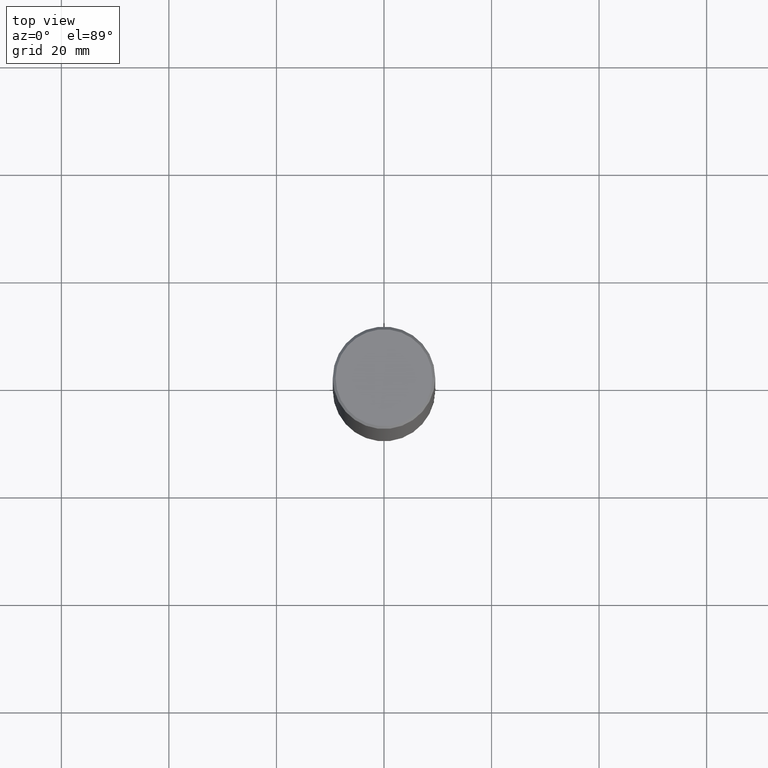
[diagram: clean part render]
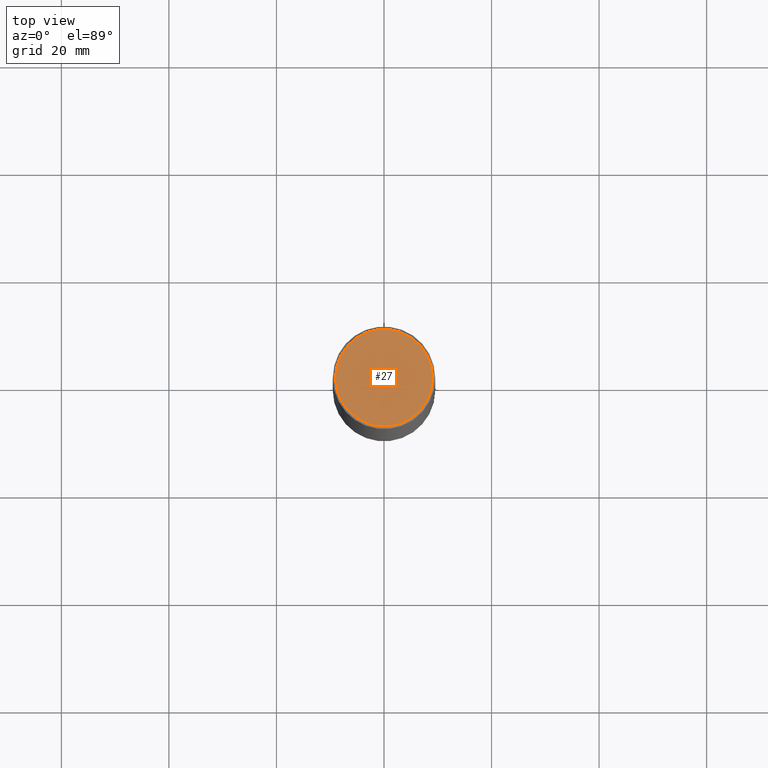
[diagram: same view with one face highlighted and labeled with its STEP entity id]
A machine part, top view. The second image highlights one B-rep face of the part: STEP entity #27.
In plain terms, the highlighted planar face has unit normal (0, -0, -1).
Its self-contained STEP definition (entity closure, byte-faithful):
#4 = ORIENTED_EDGE ( 'NONE', *, *, #68, .T. ) ;
#7 = CARTESIAN_POINT ( 'NONE',  ( 3.966635374473835042E-45, -5.663304047445699634E-31, -1.622034746238156224E-16 ) ) ;
#27 = ADVANCED_FACE ( 'NONE', ( #337 ), #148, .F. ) ;
#29 = CIRCLE ( 'NONE', #211, 0.3550000000000001488 ) ;
#49 = DIRECTION ( 'NONE',  ( 2.438088387897960049E-29, -3.491481338843145188E-15, -1.000000000000000000 ) ) ;
#62 = DIRECTION ( 'NONE',  ( -2.445468806185136597E-29, 3.491481338843145583E-15, 1.000000000000000000 ) ) ;
#68 = EDGE_CURVE ( 'NONE', #228, #323, #29, .T. ) ;
#73 = DIRECTION ( 'NONE',  ( 1.000000000000000000, -6.982962677686266711E-15, 4.878367520217860717E-29 ) ) ;
#75 = CARTESIAN_POINT ( 'NONE',  ( 3.966635374473835042E-45, -5.663304047445699634E-31, -1.622034746238156224E-16 ) ) ;
#104 = AXIS2_PLACEMENT_3D ( 'NONE', #75, #62, #73 ) ;
#109 = CARTESIAN_POINT ( 'NONE',  ( 2.478951750578625787E-15, 0.3550000000000001488, -1.320577612601225142E-15 ) ) ;
#146 = EDGE_LOOP ( 'NONE', ( #414, #4 ) ) ;
#148 = PLANE ( 'NONE',  #335 ) ;
#150 = DIRECTION ( 'NONE',  ( -2.445468806185136597E-29, 3.491481338843145583E-15, 1.000000000000000000 ) ) ;
#177 = DIRECTION ( 'NONE',  ( 1.000000000000000000, -6.982962677686266711E-15, 4.878367520217860717E-29 ) ) ;
#211 = AXIS2_PLACEMENT_3D ( 'NONE', #7, #150, #177 ) ;
#228 = VERTEX_POINT ( 'NONE', #372 ) ;
#257 = CIRCLE ( 'NONE', #104, 0.3550000000000001488 ) ;
#323 = VERTEX_POINT ( 'NONE', #389 ) ;
#335 = AXIS2_PLACEMENT_3D ( 'NONE', #109, #49, #360 ) ;
#337 = FACE_OUTER_BOUND ( 'NONE', #146, .T. ) ;
#360 = DIRECTION ( 'NONE',  ( -1.000000000000000000, 6.982962677686265922E-15, -4.876176775795935793E-29 ) ) ;
#363 = EDGE_CURVE ( 'NONE', #323, #228, #257, .T. ) ;
#372 = CARTESIAN_POINT ( 'NONE',  ( 0.3550000000000001488, -2.538996582575041837E-15, -1.622034746237980703E-16 ) ) ;
#389 = CARTESIAN_POINT ( 'NONE',  ( -0.3550000000000001488, 2.513866563967055858E-15, -1.622034746238331006E-16 ) ) ;
#414 = ORIENTED_EDGE ( 'NONE', *, *, #363, .T. ) ;